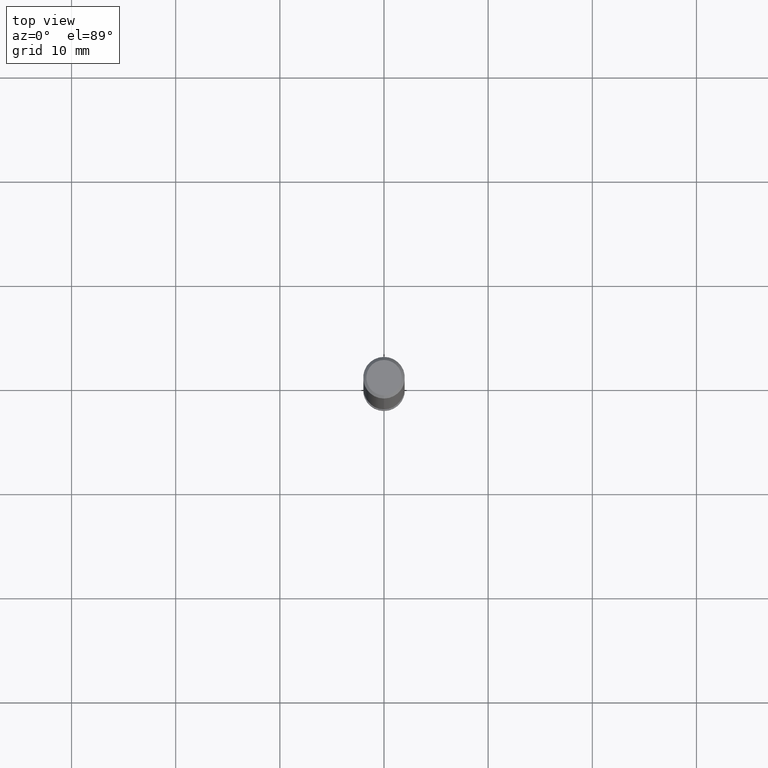
[diagram: clean part render]
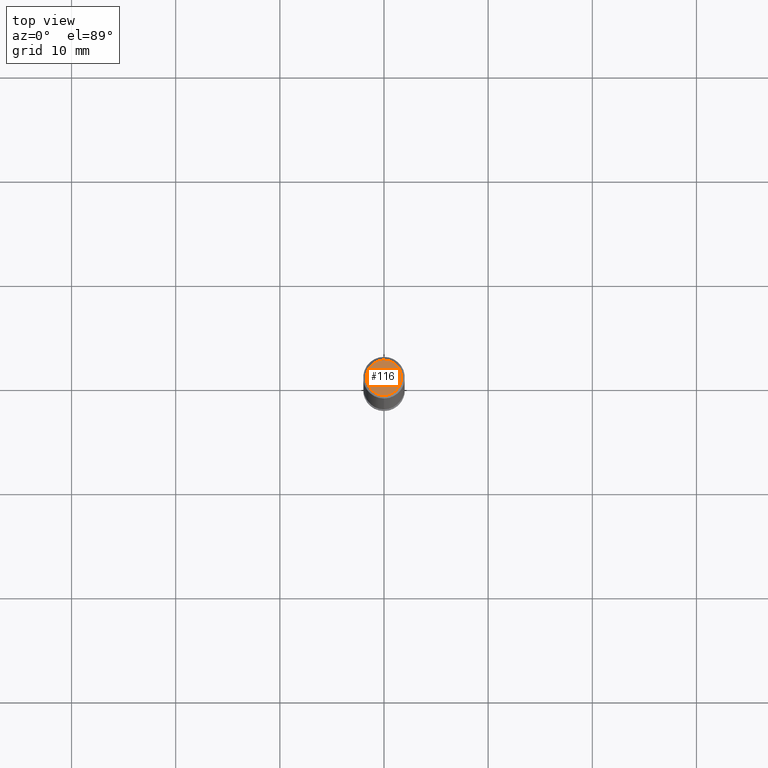
[diagram: same view with one face highlighted and labeled with its STEP entity id]
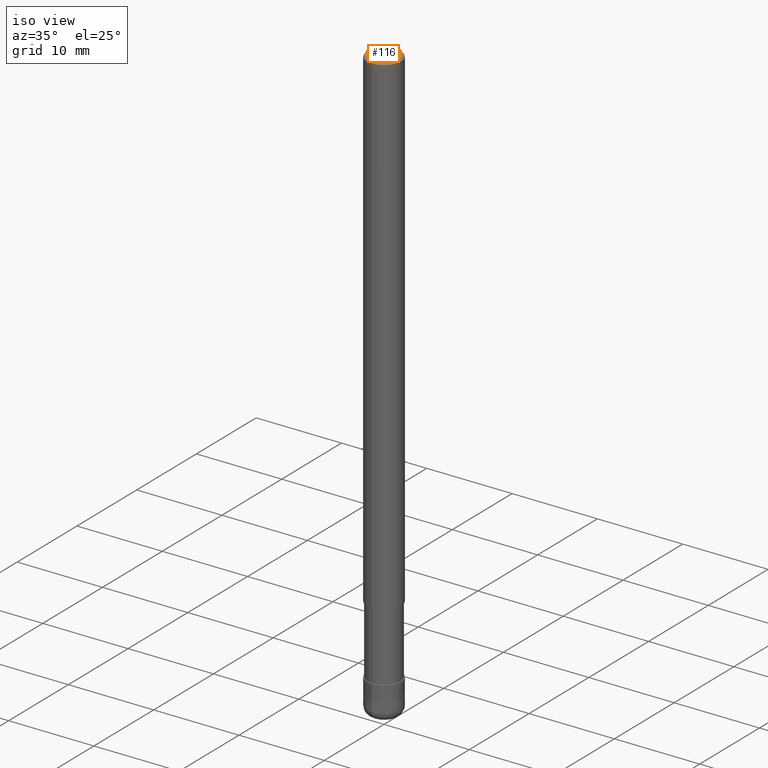
[diagram: same view with one face highlighted and labeled with its STEP entity id]
A machine part, top view. The second image highlights one B-rep face of the part: STEP entity #116.
A second angle (iso view) of the same face is appended — the face is thin or edge-on in the first view.
In plain terms, the highlighted planar face has unit normal (-0, 0, 1).
Its self-contained STEP definition (entity closure, byte-faithful):
#104=VERTEX_POINT('',#242);
#116=ADVANCED_FACE('',(#257),#258,.T.);
#144=EDGE_CURVE('',#198,#104,#288,.T.);
#146=EDGE_CURVE('',#104,#198,#290,.T.);
#198=VERTEX_POINT('',#349);
#242=CARTESIAN_POINT('',(2.08183080149804E-016,-1.7,0.0));
#257=FACE_OUTER_BOUND('',#406,.T.);
#258=PLANE('',#407);
#288=CIRCLE('',#449,1.7);
#290=CIRCLE('',#452,1.7);
#349=CARTESIAN_POINT('',(0.0,1.7,0.0));
#406=EDGE_LOOP('',(#580,#581));
#407=AXIS2_PLACEMENT_3D('',#582,#583,#584);
#449=AXIS2_PLACEMENT_3D('',#617,#618,#619);
#452=AXIS2_PLACEMENT_3D('',#620,#621,#622);
#580=ORIENTED_EDGE('',*,*,#144,.F.);
#581=ORIENTED_EDGE('',*,*,#146,.F.);
#582=CARTESIAN_POINT('',(0.0,0.85,0.0));
#583=DIRECTION('',(-0.0,0.0,1.0));
#584=DIRECTION('',(0.0,-1.0,0.0));
#617=CARTESIAN_POINT('',(0.0,0.0,0.0));
#618=DIRECTION('',(0.0,0.0,-1.0));
#619=DIRECTION('',(0.0,1.0,0.0));
#620=CARTESIAN_POINT('',(0.0,0.0,0.0));
#621=DIRECTION('',(0.0,0.0,-1.0));
#622=DIRECTION('',(0.0,1.0,0.0));